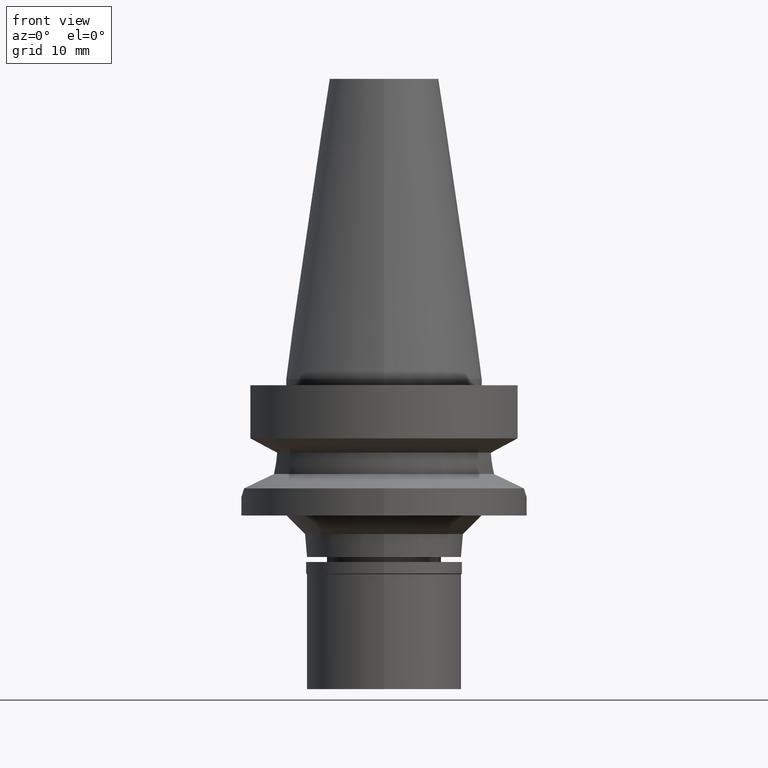
[diagram: clean part render]
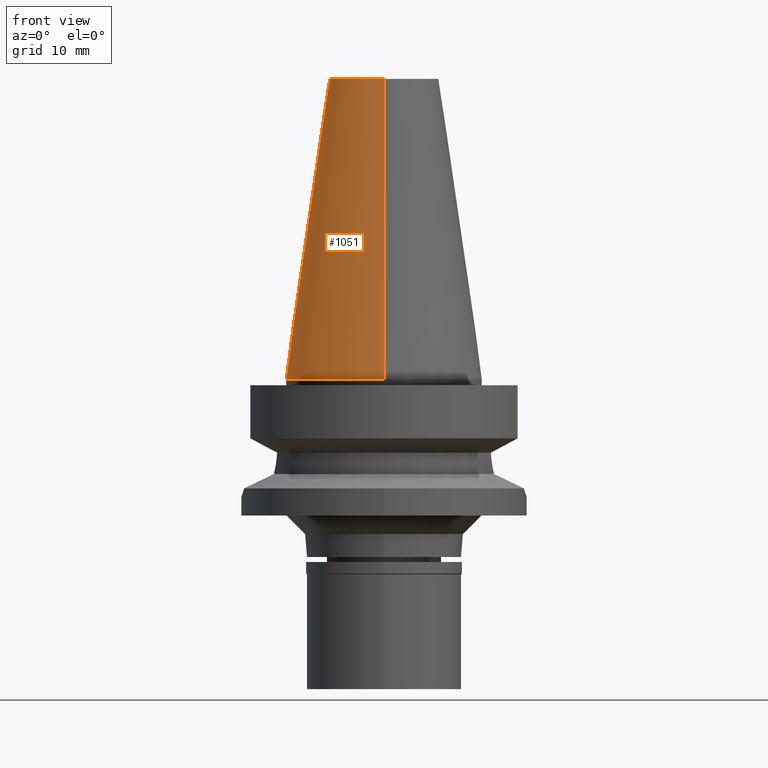
[diagram: same view with one face highlighted and labeled with its STEP entity id]
A machine part, front view. The second image highlights one B-rep face of the part: STEP entity #1051.
In plain terms, the highlighted conical surface has half-angle 8.297 deg.
Its self-contained STEP definition (entity closure, byte-faithful):
#213 = LINE ( 'NONE', #934, #2427 ) ;
#252 = DIRECTION ( 'NONE',  ( 0.0000000000000000000, -0.1443043893539925626, -0.9895333461855498891 ) ) ;
#353 = CARTESIAN_POINT ( 'NONE',  ( 0.0000000000000000000, -8.816791732783000768, 48.39999999999999858 ) ) ;
#423 = DIRECTION ( 'NONE',  ( 0.0000000000000000000, 0.0000000000000000000, -1.000000000000000000 ) ) ;
#466 = CARTESIAN_POINT ( 'NONE',  ( 0.0000000000000000000, 8.816791732783000768, 48.39999999999999858 ) ) ;
#503 = LINE ( 'NONE', #466, #2467 ) ;
#533 = AXIS2_PLACEMENT_3D ( 'NONE', #2643, #1498, #2881 ) ;
#538 = EDGE_CURVE ( 'NONE', #646, #845, #213, .T. ) ;
#646 = VERTEX_POINT ( 'NONE', #353 ) ;
#693 = CARTESIAN_POINT ( 'NONE',  ( 0.0000000000000000000, 15.87500000000000000, -1.918465386551999891E-13 ) ) ;
#736 = CIRCLE ( 'NONE', #1339, 8.816791732783000768 ) ;
#828 = AXIS2_PLACEMENT_3D ( 'NONE', #2558, #423, #2338 ) ;
#845 = VERTEX_POINT ( 'NONE', #2788 ) ;
#934 = CARTESIAN_POINT ( 'NONE',  ( 0.0000000000000000000, -8.816791732783000768, 48.39999999999999858 ) ) ;
#1051 = ADVANCED_FACE ( 'NONE', ( #2926 ), #1140, .T. ) ;
#1053 = CARTESIAN_POINT ( 'NONE',  ( 0.0000000000000000000, 8.816791732783000768, 48.39999999999999858 ) ) ;
#1140 = CONICAL_SURFACE ( 'NONE', #533, 12.34589586639000025, 0.1448099680379422438 ) ;
#1262 = EDGE_LOOP ( 'NONE', ( #1536, #2585, #2886, #1603 ) ) ;
#1339 = AXIS2_PLACEMENT_3D ( 'NONE', #1496, #2418, #1484 ) ;
#1421 = VERTEX_POINT ( 'NONE', #693 ) ;
#1441 = DIRECTION ( 'NONE',  ( 0.0000000000000000000, 0.1443043893539925626, -0.9895333461855498891 ) ) ;
#1484 = DIRECTION ( 'NONE',  ( 0.0000000000000000000, -1.000000000000000000, 0.0000000000000000000 ) ) ;
#1496 = CARTESIAN_POINT ( 'NONE',  ( 0.0000000000000000000, 1.521011324540999938E-14, 48.39999999999999858 ) ) ;
#1498 = DIRECTION ( 'NONE',  ( 0.0000000000000000000, 0.0000000000000000000, -1.000000000000000000 ) ) ;
#1536 = ORIENTED_EDGE ( 'NONE', *, *, #1607, .F. ) ;
#1603 = ORIENTED_EDGE ( 'NONE', *, *, #2209, .T. ) ;
#1607 = EDGE_CURVE ( 'NONE', #845, #1421, #1639, .T. ) ;
#1639 = CIRCLE ( 'NONE', #828, 15.87500000000000000 ) ;
#1731 = VERTEX_POINT ( 'NONE', #1053 ) ;
#2209 = EDGE_CURVE ( 'NONE', #1731, #1421, #503, .T. ) ;
#2219 = EDGE_CURVE ( 'NONE', #646, #1731, #736, .T. ) ;
#2338 = DIRECTION ( 'NONE',  ( 0.0000000000000000000, -1.000000000000000000, 0.0000000000000000000 ) ) ;
#2418 = DIRECTION ( 'NONE',  ( 0.0000000000000000000, 0.0000000000000000000, -1.000000000000000000 ) ) ;
#2427 = VECTOR ( 'NONE', #252, 1000.000000000000114 ) ;
#2467 = VECTOR ( 'NONE', #1441, 1000.000000000000114 ) ;
#2558 = CARTESIAN_POINT ( 'NONE',  ( 0.0000000000000000000, 1.521011324540999938E-14, -3.694822225953000089E-13 ) ) ;
#2585 = ORIENTED_EDGE ( 'NONE', *, *, #538, .F. ) ;
#2643 = CARTESIAN_POINT ( 'NONE',  ( 0.0000000000000000000, 1.521011324540999938E-14, 24.19999999999999929 ) ) ;
#2788 = CARTESIAN_POINT ( 'NONE',  ( 0.0000000000000000000, -15.87500000000000000, -1.918465386551999891E-13 ) ) ;
#2881 = DIRECTION ( 'NONE',  ( 0.0000000000000000000, -1.000000000000000000, 0.0000000000000000000 ) ) ;
#2886 = ORIENTED_EDGE ( 'NONE', *, *, #2219, .T. ) ;
#2926 = FACE_OUTER_BOUND ( 'NONE', #1262, .T. ) ;